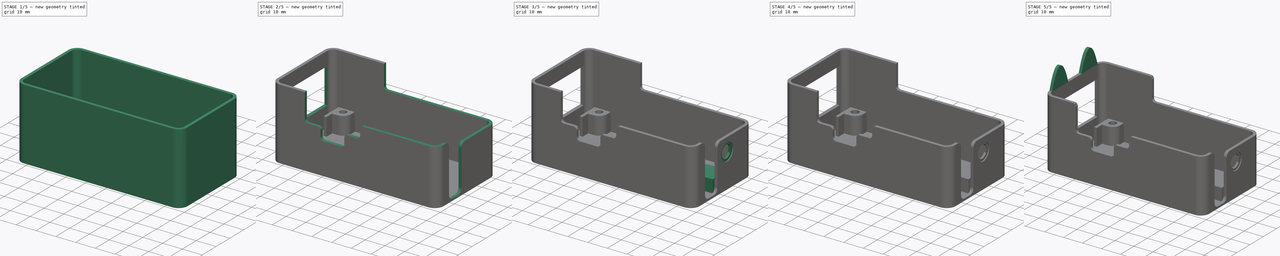
[diagram: build sequence overview — one tinted view per stage of 5, left to right]
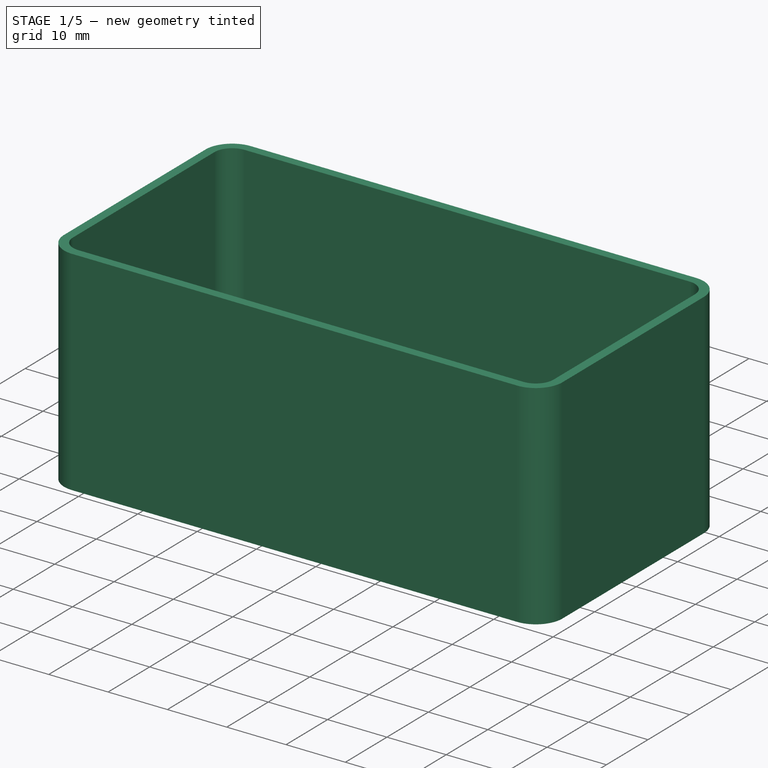
[diagram: stage 1 of 5 — iso view after this stage's code; geometry added in this stage tinted green]
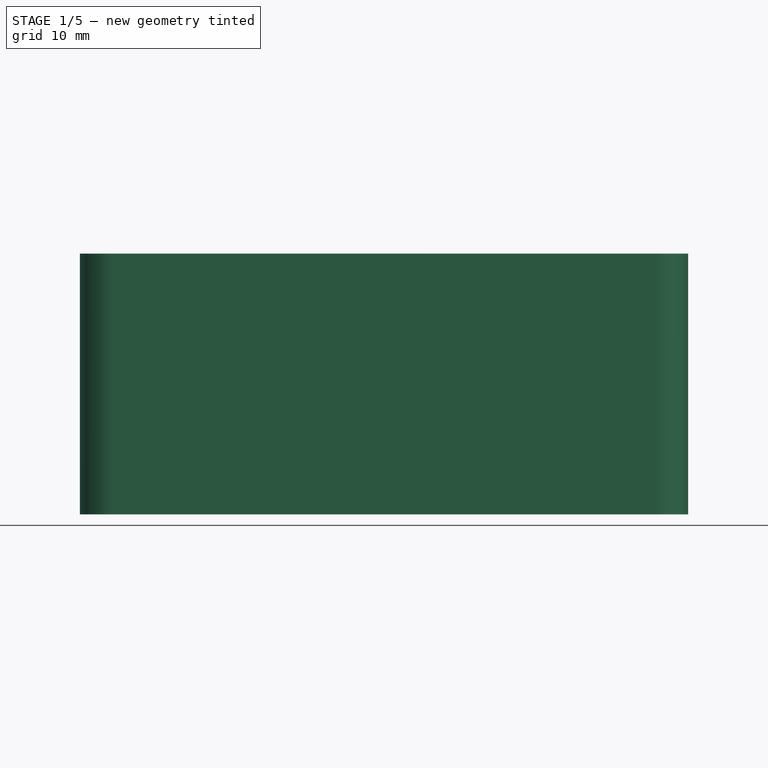
[diagram: stage 1 of 5 — front view after this stage's code; geometry added in this stage tinted green]
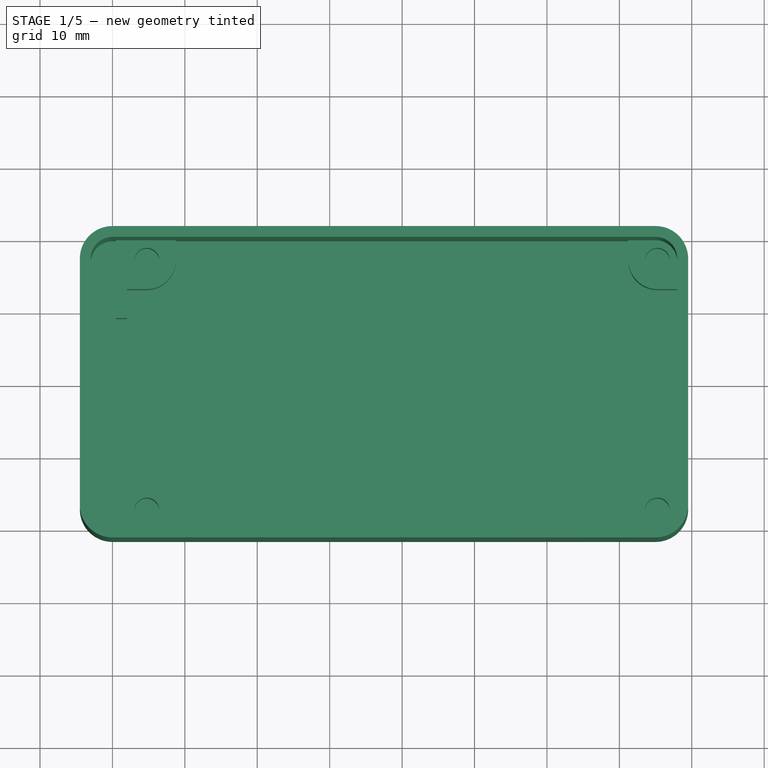
[diagram: stage 1 of 5 — top view after this stage's code; geometry added in this stage tinted green]
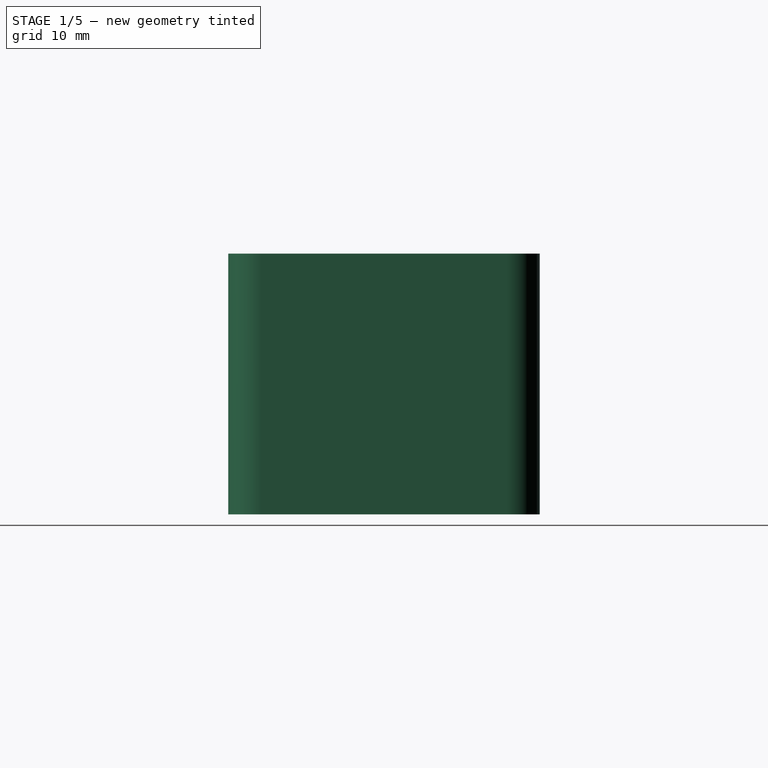
[diagram: stage 1 of 5 — right view after this stage's code; geometry added in this stage tinted green]
FCSTD DOCUMENT  (FreeCAD 0.20R29410 (Git))
Label: Long-Distance-V1
License: All rights reserved
LicenseURL: http://en.wikipedia.org/wiki/All_rights_reserved
objects: Sketcher::SketchObject×15, PartDesign::Pocket×11, PartDesign::Pad×4, PartDesign::LinearPattern×2, PartDesign::MultiTransform×1, PartDesign::Fillet×1, PartDesign::Body×1
note: 51 computed .brp shape members not serialized (recipe doc carries the construction recipe); baked Part::Feature solids carry a one-line shape summary decoded from their .brp

FEATURE [Sketcher::SketchObject] Sketch
  FullyConstrained = true
  MapMode = 5
  Support = -> [XY_Plane]
  sketch-geometry (20):
    g0: LineSegment StartX=-35 StartY=20 StartZ=0 EndX=35 EndY=20 EndZ=0
    g1: LineSegment StartX=38 StartY=17 StartZ=0 EndX=38 EndY=-17 EndZ=0
    g2: LineSegment StartX=35 StartY=-20 StartZ=0 EndX=-35 EndY=-20 EndZ=0
    g3: LineSegment StartX=-38 StartY=-17 StartZ=0 EndX=-38 EndY=17 EndZ=0
    g4: ArcOfCircle CenterX=-35 CenterY=17 CenterZ=0 NormalX=0 NormalY=0 NormalZ=1 AngleXU=0 Radius=3 StartAngle=1.5708 EndAngle=3.14159
    g5: ArcOfCircle CenterX=35 CenterY=17 CenterZ=0 NormalX=0 NormalY=0 NormalZ=1 AngleXU=0 Radius=3 StartAngle=3e-16 EndAngle=1.5708
    g6: ArcOfCircle CenterX=35 CenterY=-17 CenterZ=0 NormalX=0 NormalY=0 NormalZ=1 AngleXU=0 Radius=3 StartAngle=4.71239 EndAngle=6.28319
    g7: ArcOfCircle CenterX=-35 CenterY=-17 CenterZ=0 NormalX=0 NormalY=0 NormalZ=1 AngleXU=0 Radius=3 StartAngle=3.14159 EndAngle=4.71239
    g8: LineSegment StartX=-40 StartY=21.5 StartZ=0 EndX=35 EndY=21.5 EndZ=0
    g9: LineSegment StartX=39.5 StartY=17 StartZ=0 EndX=39.5 EndY=-17 EndZ=0
    g10: LineSegment StartX=35 StartY=-21.5 StartZ=0 EndX=-40 EndY=-21.5 EndZ=0
    g11: LineSegment StartX=-44.5 StartY=-17 StartZ=0 EndX=-44.5 EndY=17 EndZ=0
    g12: ArcOfCircle CenterX=-40 CenterY=17 CenterZ=0 NormalX=0 NormalY=0 NormalZ=1 AngleXU=0 Radius=4.5 StartAngle=1.5708 EndAngle=3.14159
    g13: GeomPoint X=-44.5 Y=21.5 Z=0
    g14: ArcOfCircle CenterX=-40 CenterY=-17 CenterZ=0 NormalX=0 NormalY=0 NormalZ=1 AngleXU=0 Radius=4.5 StartAngle=3.14159 EndAngle=4.71239
    g15: GeomPoint X=-44.5 Y=-21.5 Z=0
    g16: ArcOfCircle CenterX=35 CenterY=-17 CenterZ=0 NormalX=0 NormalY=0 NormalZ=1 AngleXU=0 Radius=4.5 StartAngle=4.71239 EndAngle=6.28319
    g17: GeomPoint X=39.5 Y=-21.5 Z=0
    g18: ArcOfCircle CenterX=35 CenterY=17 CenterZ=0 NormalX=0 NormalY=0 NormalZ=1 AngleXU=0 Radius=4.5 StartAngle=0 EndAngle=1.5708
    g19: GeomPoint X=39.5 Y=21.5 Z=0
  constraints (46):
    c: Horizontal(g0)
    c: Horizontal(g2)
    c: Vertical(g1)
    c: Vertical(g3)
    c: Tangent(g3,g4) = 1.5708
    c: Tangent(g0,g4) = 1.5708
    c: Tangent(g0,g5) = 1.5708
    c: Tangent(g1,g5) = 1.5708
    c: Tangent(g2,g6) = 1.5708
    c: Tangent(g1,g6) = 1.5708
    c: Tangent(g3,g7) = 1.5708
    c: Tangent(g2,g7) = 1.5708
    c: Equal(g7,g4)
    c: Equal(g4,g5)
    c: Equal(g5,g6)
    c: Radius(g5) = 3
    c: Symmetric(g4,g6,g-1)
    c: DistanceY(g2,g0) = 40
    c: DistanceX(g3,g1) = 76
    c: Horizontal(g8)
    c: Horizontal(g10)
    c: Vertical(g9)
    c: Vertical(g11)
    c: DistanceX(g1,g19) = 1.5
    c: DistanceY(g0,g19) = 1.5
    c: DistanceY(g17,g2) = 1.5
    c: DistanceX(g13,g3) = 6.5
    c: PointOnObject(g13,g11)
    c: PointOnObject(g13,g8)
    c: Tangent(g11,g12) = 1.5708
    c: Tangent(g8,g12) = 1.5708
    c: PointOnObject(g15,g11)
    c: PointOnObject(g15,g10)
    c: Tangent(g11,g14) = 1.5708
    c: Tangent(g10,g14) = 1.5708
    c: PointOnObject(g17,g10)
    c: PointOnObject(g17,g9)
    c: Tangent(g10,g16) = 1.5708
    c: Tangent(g9,g16) = 1.5708
    c: PointOnObject(g19,g8)
    c: Tangent(g8,g18) = 1.5708
    c: Tangent(g9,g18) = 1.5708
    c: Equal(g12,g18)
    c: Equal(g18,g14)
    c: Equal(g14,g16)
    c: Coincident(g16,g6)
FEATURE [PartDesign::Pad] Pad
  Direction = (0,0,1)
  Length = 36
  Length2 = 10
  Profile = -> Sketch
  ReferenceAxis = -> Sketch [N_Axis]
  Type = 0
FEATURE [Sketcher::SketchObject] Sketch001
  ExternalGeometry = -> [Pad]
  FullyConstrained = true
  MapMode = 5
  Placement = pos=(0,0,36) rot=(0,0,1;0rad)
  Support = -> [Pad]
  sketch-geometry (12):
    g0: LineSegment StartX=-40 StartY=20 StartZ=0 EndX=35 EndY=20 EndZ=0
    g1: LineSegment StartX=38 StartY=17 StartZ=0 EndX=38 EndY=-17 EndZ=0
    g2: LineSegment StartX=35 StartY=-20 StartZ=0 EndX=-40 EndY=-20 EndZ=0
    g3: LineSegment StartX=-43 StartY=-17 StartZ=0 EndX=-43 EndY=17 EndZ=0
    g4: ArcOfCircle CenterX=35 CenterY=17 CenterZ=0 NormalX=0 NormalY=0 NormalZ=1 AngleXU=0 Radius=3 StartAngle=0 EndAngle=1.5708
    g5: GeomPoint X=38 Y=20 Z=0
    g6: ArcOfCircle CenterX=35 CenterY=-17 CenterZ=0 NormalX=0 NormalY=0 NormalZ=1 AngleXU=0 Radius=3 StartAngle=4.71239 EndAngle=6.28319
    g7: GeomPoint X=38 Y=-20 Z=0
    g8: ArcOfCircle CenterX=-40 CenterY=-17 CenterZ=0 NormalX=0 NormalY=0 NormalZ=1 AngleXU=0 Radius=3 StartAngle=3.14159 EndAngle=4.71239
    g9: GeomPoint X=-43 Y=-20 Z=0
    g10: ArcOfCircle CenterX=-40 CenterY=17 CenterZ=0 NormalX=0 NormalY=0 NormalZ=1 AngleXU=0 Radius=3 StartAngle=1.5708 EndAngle=3.14159
    g11: GeomPoint X=-43 Y=20 Z=0
  constraints (26):
    c: Horizontal(g0)
    c: Horizontal(g2)
    c: Vertical(g1)
    c: Vertical(g3)
    c: PointOnObject(g5,g0)
    c: PointOnObject(g5,g1)
    c: Tangent(g0,g4) = 1.5708
    c: Tangent(g1,g4) = 1.5708
    c: PointOnObject(g7,g1)
    c: PointOnObject(g7,g2)
    c: Tangent(g1,g6) = 1.5708
    c: Tangent(g2,g6) = 1.5708
    c: PointOnObject(g9,g3)
    c: PointOnObject(g9,g2)
    c: Tangent(g3,g8) = 1.5708
    c: Tangent(g2,g8) = 1.5708
    c: PointOnObject(g11,g3)
    c: PointOnObject(g11,g0)
    c: Tangent(g3,g10) = 1.5708
    c: Tangent(g0,g10) = 1.5708
    c: Coincident(g10,g-3)
    c: Coincident(g6,g-4)
    c: Equal(g4,g6)
    c: Equal(g6,g8)
    c: Equal(g8,g10)
    c: DistanceY(g-4,g2) = 1.5
FEATURE [PartDesign::Pocket] Pocket
  BaseFeature = -> Pad
  Direction = (0,0,-1)
  Length = 35
  Length2 = 5
  Profile = -> Sketch001
  ReferenceAxis = -> Sketch001 [N_Axis]
  Type = 0
FEATURE [Sketcher::SketchObject] Sketch002
  ExternalGeometry = -> [Pocket]
  FullyConstrained = true
  MapMode = 5
  Placement = pos=(0,0,1) rot=(0,0,1;0rad)
  Support = -> [Pocket]
  sketch-geometry (30):
    g0: LineSegment StartX=-39.5 StartY=20 StartZ=0 EndX=-31.25 EndY=20 EndZ=0
    g1: LineSegment StartX=-31.25 StartY=20 StartZ=0 EndX=-31.25 EndY=17.25 EndZ=0
    g2: LineSegment StartX=-35.25 StartY=13.25 StartZ=0 EndX=-38 EndY=13.25 EndZ=0
    g3: LineSegment StartX=35.25 StartY=20 StartZ=0 EndX=31.25 EndY=20 EndZ=0
    g4: LineSegment StartX=31.25 StartY=20 StartZ=0 EndX=31.25 EndY=17.25 EndZ=0
    g5: LineSegment StartX=35.25 StartY=13.25 StartZ=0 EndX=38 EndY=13.25 EndZ=0
    g6: LineSegment StartX=38 StartY=13.25 StartZ=0 EndX=38 EndY=17.25 EndZ=0
    g7: LineSegment StartX=-38 StartY=-13.25 StartZ=0 EndX=-35.25 EndY=-13.25 EndZ=0
    g8: LineSegment StartX=-31.25 StartY=-17.25 StartZ=0 EndX=-31.25 EndY=-20 EndZ=0
    g9: LineSegment StartX=-31.25 StartY=-20 StartZ=0 EndX=-39.5 EndY=-20 EndZ=0
    g10: LineSegment StartX=35.25 StartY=-13.25 StartZ=0 EndX=38 EndY=-13.25 EndZ=0
    g11: LineSegment StartX=38 StartY=-13.25 StartZ=0 EndX=38 EndY=-17.25 EndZ=0
    g12: LineSegment StartX=35.25 StartY=-20 StartZ=0 EndX=31.25 EndY=-20 EndZ=0
    g13: LineSegment StartX=31.25 StartY=-20 StartZ=0 EndX=31.25 EndY=-17.25 EndZ=0
    g14: ArcOfCircle CenterX=-35.25 CenterY=17.25 CenterZ=0 NormalX=0 NormalY=0 NormalZ=1 AngleXU=0 Radius=4 StartAngle=4.71239 EndAngle=6.28319
    g15: ArcOfCircle CenterX=35.25 CenterY=17.25 CenterZ=0 NormalX=0 NormalY=0 NormalZ=1 AngleXU=0 Radius=2.75 StartAngle=-6.2e-15 EndAngle=1.5708
    g16: ArcOfCircle CenterX=35.25 CenterY=17.25 CenterZ=0 NormalX=0 NormalY=0 NormalZ=1 AngleXU=0 Radius=4 StartAngle=3.14159 EndAngle=4.71239
    g17: ArcOfCircle CenterX=-35.25 CenterY=-17.25 CenterZ=0 NormalX=0 NormalY=0 NormalZ=1 AngleXU=0 Radius=4 StartAngle=1e-16 EndAngle=1.5708
    g18: ArcOfCircle CenterX=35.25 CenterY=-17.25 CenterZ=0 NormalX=0 NormalY=0 NormalZ=1 AngleXU=0 Radius=4 StartAngle=1.5708 EndAngle=3.14159
    g19: ArcOfCircle CenterX=35.25 CenterY=-17.25 CenterZ=0 NormalX=0 NormalY=0 NormalZ=1 AngleXU=0 Radius=2.75 StartAngle=4.71239 EndAngle=6.28319
    g20: Circle CenterX=35.25 CenterY=17.25 CenterZ=0 NormalX=0 NormalY=0 NormalZ=1 AngleXU=0 Radius=1.7
    g21: Circle CenterX=-35.25 CenterY=17.25 CenterZ=0 NormalX=0 NormalY=0 NormalZ=1 AngleXU=0 Radius=1.7
    g22: Circle CenterX=-35.25 CenterY=-17.25 CenterZ=0 NormalX=0 NormalY=0 NormalZ=1 AngleXU=0 Radius=1.7
    g23: Circle CenterX=35.25 CenterY=-17.25 CenterZ=0 NormalX=0 NormalY=0 NormalZ=1 AngleXU=0 Radius=1.7
    g24: LineSegment StartX=-38 StartY=13.25 StartZ=0 EndX=-38 EndY=9.25 EndZ=0
    g25: LineSegment StartX=-38 StartY=9.25 StartZ=0 EndX=-39.5 EndY=9.25 EndZ=0
    g26: LineSegment StartX=-39.5 StartY=9.25 StartZ=0 EndX=-39.5 EndY=20 EndZ=0
    g27: LineSegment StartX=-38 StartY=-13.25 StartZ=0 EndX=-38 EndY=-9.25 EndZ=0
    g28: LineSegment StartX=-38 StartY=-9.25 StartZ=0 EndX=-39.5 EndY=-9.25 EndZ=0
    g29: LineSegment StartX=-39.5 StartY=-9.25 StartZ=0 EndX=-39.5 EndY=-20 EndZ=0
  constraints (75):
    c: Coincident(g0,g1)
    c: Horizontal(g0)
    c: Horizontal(g2)
    c: Vertical(g1)
    c: Coincident(g3,g4)
    c: Coincident(g5,g6)
    c: Horizontal(g3)
    c: Horizontal(g5)
    c: Vertical(g4)
    c: Vertical(g6)
    c: Coincident(g8,g9)
    c: Horizontal(g7)
    c: Horizontal(g9)
    c: Vertical(g8)
    c: Coincident(g10,g11)
    c: Coincident(g12,g13)
    c: Horizontal(g10)
    c: Horizontal(g12)
    c: Vertical(g11)
    c: Vertical(g13)
    c: Tangent(g2,g14) = 1.5708
    c: Tangent(g1,g14) = 1.5708
    c: Tangent(g3,g15) = -1.5708
    c: Tangent(g6,g15) = -1.5708
    c: Tangent(g4,g16) = -1.5708
    c: Tangent(g5,g16) = -1.5708
    c: Tangent(g7,g17) = 1.5708
    c: Tangent(g8,g17) = 1.5708
    c: Tangent(g13,g18) = 1.5708
    c: Tangent(g10,g18) = 1.5708
    c: Tangent(g12,g19) = 1.5708
    c: Tangent(g11,g19) = 1.5708
    c: Equal(g15,g19)
    c: Equal(g17,g18)
    c: Equal(g18,g16)
    c: Equal(g16,g14)
    c: Equal(g1,g4)
    c: Equal(g2,g5)
    c: Equal(g5,g10)
    c: Equal(g13,g8)
    c: Equal(g5,g4)
    c: Equal(g21,g20)
    c: Equal(g20,g23)
    c: Equal(g23,g22)
    c: Symmetric(g21,g23,g-1)
    c: Symmetric(g22,g20,g-1)
    c: DistanceX(g21,g20) = 70.5
    c: DistanceY(g22,g21) = 34.5
    c: Coincident(g18,g23)
    c: Radius(g18) = 4
    c: Symmetric(g22,g21,g-1)
    c: Coincident(g20,g15)
    c: Diameter(g22) = 3.4
    c: PointOnObject(g8,g-3)
    c: Coincident(g17,g22)
    c: Coincident(g2,g24)
    c: Vertical(g24)
    c: Coincident(g24,g25)
    c: Coincident(g25,g26)
    c: Coincident(g26,g0)
    c: Vertical(g26)
    c: Horizontal(g25)
    c: DistanceX(g-5,g25) = 3.5
    c: Coincident(g14,g21)
    c: Coincident(g7,g27)
    c: Coincident(g27,g28)
    c: Horizontal(g28)
    c: Coincident(g28,g29)
    c: Coincident(g29,g9)
    c: Vertical(g29)
    c: Equal(g25,g28)
    c: Vertical(g27)
    c: Symmetric(g24,g27,g-1)
    c: DistanceY(g27,g27) = 4
    c: Coincident(g18,g19)
FEATURE [PartDesign::Pad] Pad001
  BaseFeature = -> Pocket
  Direction = (0,0,1)
  Length = 9
  Length2 = 10
  Profile = -> Sketch002
  ReferenceAxis = -> Sketch002 [N_Axis]
  Type = 0
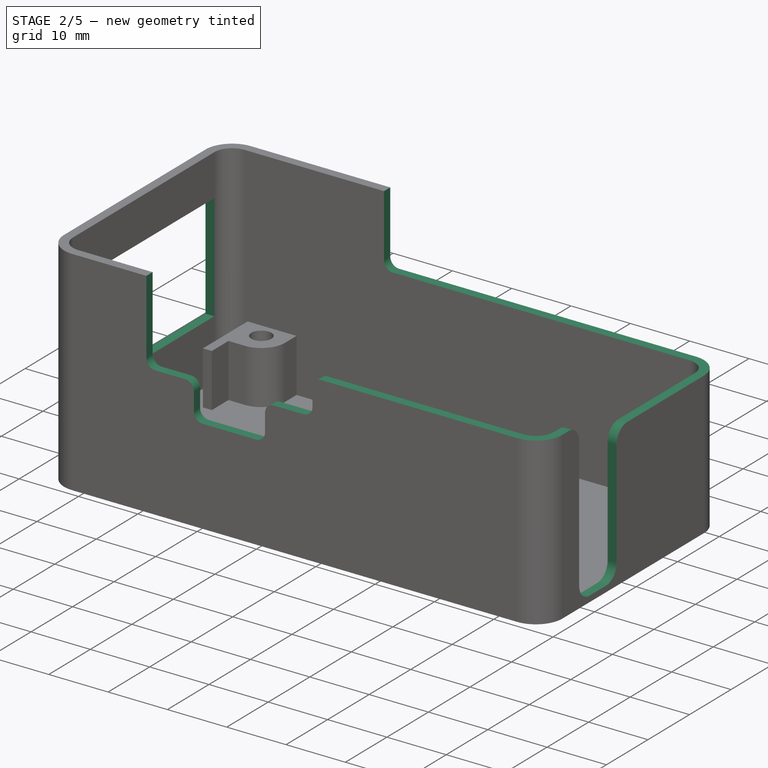
[diagram: stage 2 of 5 — iso view after this stage's code; geometry added in this stage tinted green]
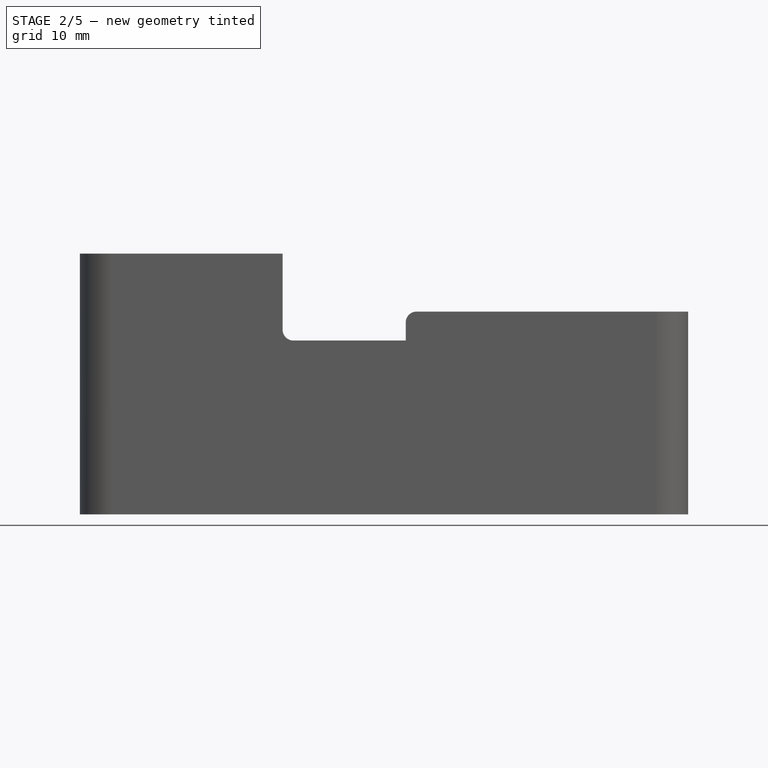
[diagram: stage 2 of 5 — front view after this stage's code; geometry added in this stage tinted green]
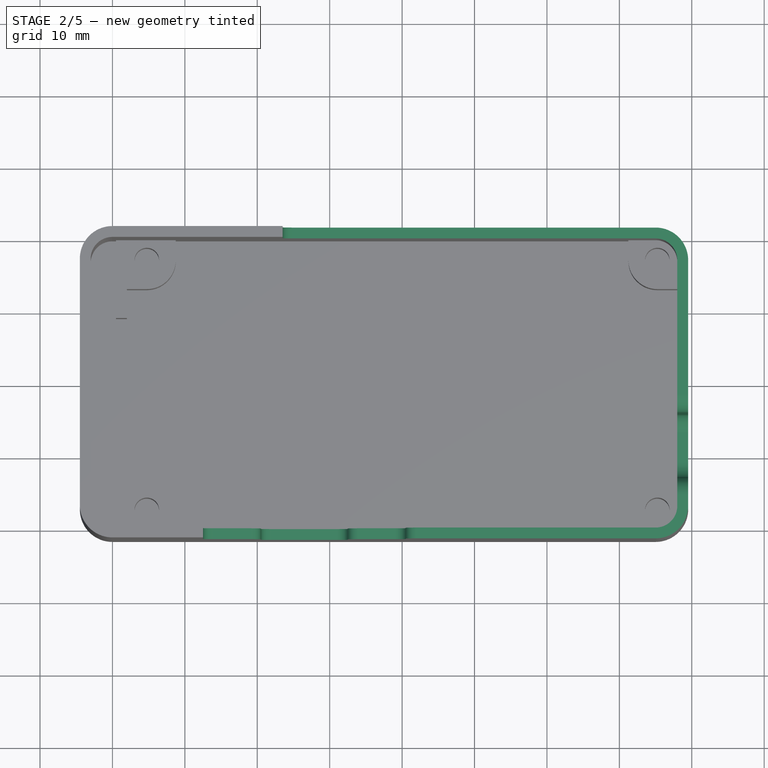
[diagram: stage 2 of 5 — top view after this stage's code; geometry added in this stage tinted green]
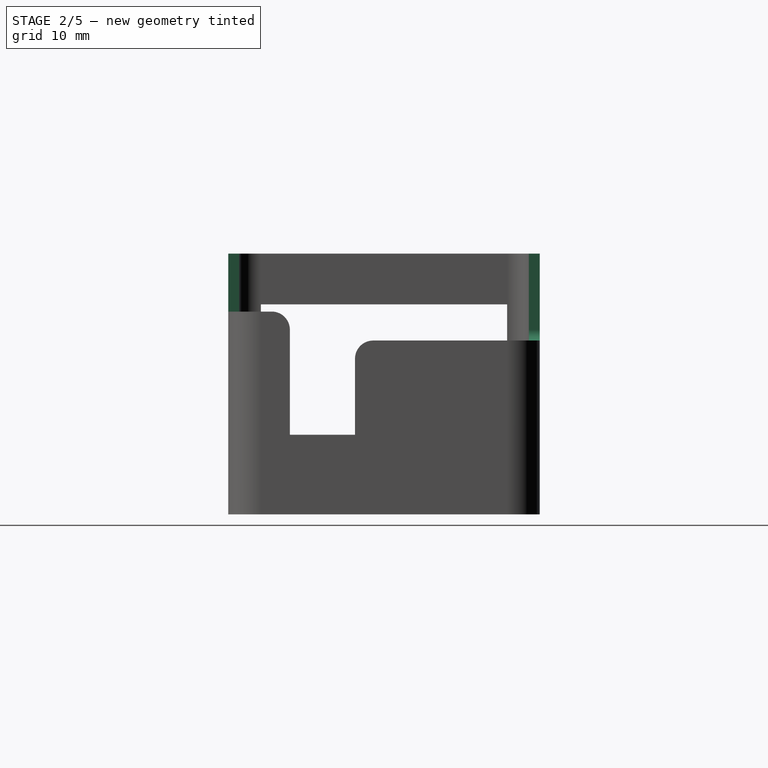
[diagram: stage 2 of 5 — right view after this stage's code; geometry added in this stage tinted green]
FEATURE [Sketcher::SketchObject] Sketch011
  FullyConstrained = false
  MapMode = 5
  Placement = pos=(-44.5,0,0) rot=(0.57735,-0.57735,-0.57735;2.0944rad)
  sketch-geometry (4):
    g0: LineSegment StartX=-17 StartY=29 StartZ=0 EndX=17 EndY=29 EndZ=0
    g1: LineSegment StartX=17 StartY=29 StartZ=0 EndX=17 EndY=11 EndZ=0
    g2: LineSegment StartX=17 StartY=11 StartZ=0 EndX=-17 EndY=11 EndZ=0
    g3: LineSegment StartX=-17 StartY=11 StartZ=0 EndX=-17 EndY=29 EndZ=0
  constraints (9):
    c: Coincident(g0,g1)
    c: Coincident(g2,g3)
    c: Coincident(g3,g0)
    c: Horizontal(g2)
    c: Vertical(g1)
    c: Vertical(g3)
    c: DistanceY(g1,g1) = 18
    c: Symmetric(g0,g0,g-2)
    c: Coincident(g1,g2)
FEATURE [Sketcher::SketchObject] Sketch013
  FullyConstrained = true
  MapMode = 5
  Placement = pos=(0,0,1) rot=(0,0,1;0rad)
  sketch-geometry (37):
    g0: LineSegment StartX=-28 StartY=-9 StartZ=0 EndX=-26.8397 EndY=-11.0096 EndZ=0
    g1: LineSegment StartX=-26.8397 StartY=-11.0096 StartZ=0 EndX=-24.5192 EndY=-11.0096 EndZ=0
    g2: LineSegment StartX=-24.5192 StartY=-11.0096 StartZ=0 EndX=-23.359 EndY=-9 EndZ=0
    g3: LineSegment StartX=-23.359 StartY=-9 StartZ=0 EndX=-24.5192 EndY=-6.99038 EndZ=0
    g4: LineSegment StartX=-24.5192 StartY=-6.99038 StartZ=0 EndX=-26.8397 EndY=-6.99038 EndZ=0
    g5: LineSegment StartX=-26.8397 StartY=-6.99038 StartZ=0 EndX=-28 EndY=-9 EndZ=0
    g6: Circle CenterX=-25.6795 CenterY=-9 CenterZ=0 NormalX=0 NormalY=0 NormalZ=1 AngleXU=0 Radius=2.32051
    g7: LineSegment StartX=-18.1795 StartY=-6.00962 StartZ=0 EndX=-19.3397 EndY=-4 EndZ=0
    g8: LineSegment StartX=-19.3397 StartY=-4 StartZ=0 EndX=-21.6603 EndY=-4 EndZ=0
    g9: LineSegment StartX=-21.6603 StartY=-4 StartZ=0 EndX=-22.8205 EndY=-6.00962 EndZ=0
    g10: LineSegment StartX=-22.8205 StartY=-6.00962 StartZ=0 EndX=-21.6603 EndY=-8.01924 EndZ=0
    g11: LineSegment StartX=-21.6603 StartY=-8.01924 StartZ=0 EndX=-19.3397 EndY=-8.01924 EndZ=0
    g12: LineSegment StartX=-19.3397 StartY=-8.01924 StartZ=0 EndX=-18.1795 EndY=-6.00962 EndZ=0
    g13: Circle CenterX=-20.5 CenterY=-6.00962 CenterZ=0 NormalX=0 NormalY=0 NormalZ=1 AngleXU=0 Radius=2.32051
    g14: LineSegment StartX=-16.4808 StartY=-6.99038 StartZ=0 EndX=-17.641 EndY=-9 EndZ=0
    g15: LineSegment StartX=-17.641 StartY=-9 StartZ=0 EndX=-16.4808 EndY=-11.0096 EndZ=0
    g16: LineSegment StartX=-16.4808 StartY=-11.0096 StartZ=0 EndX=-14.1603 EndY=-11.0096 EndZ=0
    g17: LineSegment StartX=-14.1603 StartY=-11.0096 StartZ=0 EndX=-13 EndY=-9 EndZ=0
    g18: LineSegment StartX=-13 StartY=-9 StartZ=0 EndX=-14.1603 EndY=-6.99038 EndZ=0
    g19: LineSegment StartX=-14.1603 StartY=-6.99038 StartZ=0 EndX=-16.4808 EndY=-6.99038 EndZ=0
    g20: Circle CenterX=-15.3205 CenterY=-9 CenterZ=0 NormalX=0 NormalY=0 NormalZ=1 AngleXU=0 Radius=2.32051
    g21: LineSegment StartX=-22.8205 StartY=-11.9904 StartZ=0 EndX=-21.6603 EndY=-14 EndZ=0
    g22: LineSegment StartX=-21.6603 StartY=-14 StartZ=0 EndX=-19.3397 EndY=-14 EndZ=0
    g23: LineSegment StartX=-19.3397 StartY=-14 StartZ=0 EndX=-18.1795 EndY=-11.9904 EndZ=0
    g24: LineSegment StartX=-18.1795 StartY=-11.9904 StartZ=0 EndX=-19.3397 EndY=-9.98076 EndZ=0
    g25: LineSegment StartX=-19.3397 StartY=-9.98076 StartZ=0 EndX=-21.6603 EndY=-9.98076 EndZ=0
    g26: LineSegment StartX=-21.6603 StartY=-9.98076 StartZ=0 EndX=-22.8205 EndY=-11.9904 EndZ=0
    g27: Circle CenterX=-20.5 CenterY=-11.9904 CenterZ=0 NormalX=0 NormalY=0 NormalZ=1 AngleXU=0 Radius=2.32051
    g28: LineSegment StartX=-25.6795 StartY=-9 StartZ=0 EndX=-20.5 EndY=-6.00962 EndZ=0
    g29: LineSegment StartX=-20.5 StartY=-6.00962 StartZ=0 EndX=-15.3205 EndY=-9 EndZ=0
    g30: LineSegment StartX=-15.3205 StartY=-9 StartZ=0 EndX=-20.5 EndY=-11.9904 EndZ=0
    g31: LineSegment StartX=-20.5 StartY=-11.9904 StartZ=0 EndX=-25.6795 EndY=-9 EndZ=0
    g32: GeomPoint X=-20.5 Y=-9 Z=0
    g33: LineSegment StartX=-28 StartY=-4 StartZ=0 EndX=-13 EndY=-4 EndZ=0
    g34: LineSegment StartX=-13 StartY=-4 StartZ=0 EndX=-13 EndY=-14 EndZ=0
    g35: LineSegment StartX=-13 StartY=-14 StartZ=0 EndX=-28 EndY=-14 EndZ=0
    g36: LineSegment StartX=-28 StartY=-14 StartZ=0 EndX=-28 EndY=-4 EndZ=0
  constraints (89):
    c: Coincident(g0,g1)
    c: Coincident(g1,g2)
    c: Coincident(g2,g3)
    c: Coincident(g3,g4)
    c: Coincident(g4,g5)
    c: Coincident(g5,g0)
    c: Equal(g0, g1-g5) x5
    c: PointOnObject(g0,g6)
    c: PointOnObject(g1,g6)
    c: PointOnObject(g2,g6)
    c: PointOnObject(g3,g6)
    c: PointOnObject(g4,g6)
    c: PointOnObject(g5,g6)
    c: Coincident(g7,g8)
    c: Coincident(g8,g9)
    c: Coincident(g9,g10)
    c: Coincident(g10,g11)
    c: Coincident(g11,g12)
    c: Coincident(g12,g7)
    c: Equal(g7, g8-g12) x5
    c: PointOnObject(g7,g13)
    c: PointOnObject(g8,g13)
    c: PointOnObject(g9,g13)
    c: PointOnObject(g10,g13)
    c: PointOnObject(g11,g13)
    c: PointOnObject(g12,g13)
    c: Coincident(g14,g15)
    c: Coincident(g15,g16)
    c: Coincident(g16,g17)
    c: Coincident(g17,g18)
    c: Coincident(g18,g19)
    c: Coincident(g19,g14)
    c: Equal(g14, g15-g19) x5
    c: PointOnObject(g14,g20)
    c: PointOnObject(g15,g20)
    c: PointOnObject(g16,g20)
    c: PointOnObject(g17,g20)
    c: PointOnObject(g18,g20)
    c: PointOnObject(g19,g20)
    c: Coincident(g21,g22)
    c: Coincident(g22,g23)
    c: Coincident(g23,g24)
    c: Coincident(g24,g25)
    c: Coincident(g25,g26)
    c: Coincident(g26,g21)
    c: Equal(g21, g22-g26) x5
    c: PointOnObject(g21,g27)
    c: PointOnObject(g22,g27)
    c: PointOnObject(g23,g27)
    c: PointOnObject(g24,g27)
    c: PointOnObject(g25,g27)
    c: PointOnObject(g26,g27)
    c: Equal(g27,g13)
    c: Equal(g13,g20)
    c: Equal(g20,g6)
    c: Horizontal(g8)
    c: Horizontal(g16)
    c: Horizontal(g1)
    c: Horizontal(g25)
    c: Vertical(g13,g27)
    c: Horizontal(g20,g6)
    c: Coincident(g28,g6)
    c: Coincident(g28,g13)
    c: Coincident(g28,g29)
    c: Coincident(g29,g20)
    c: Coincident(g29,g30)
    c: Coincident(g30,g27)
    c: Coincident(g30,g31)
    c: Coincident(g31,g28)
    c: Parallel(g30,g28)
    c: Parallel(g31,g29)
    c: Angle(g28,g29) = 2.0944
    c: Symmetric(g20,g6,g32)
    c: Coincident(g33,g34)
    c: Coincident(g34,g35)
    c: Coincident(g35,g36)
    c: Coincident(g36,g33)
    c: Horizontal(g33)
    c: Horizontal(g35)
    c: Vertical(g34)
    c: Vertical(g36)
    c: PointOnObject(g17,g34)
    c: PointOnObject(g0,g36)
    c: PointOnObject(g7,g33)
    c: PointOnObject(g22,g35)
    c: DistanceY(g34,g34) = 10
    c: DistanceX(g33,g33) = 15
    c: DistanceY(g35,g-1) = 14
    c: DistanceX(g35,g-1) = 28
FEATURE [PartDesign::Pocket] Pocket002
  BaseFeature = -> Pad001
  Direction = (1,0,0)
  Length = 5
  Length2 = 5
  Profile = -> Sketch011
  ReferenceAxis = -> Sketch011 [N_Axis]
  Type = 0
FEATURE [Sketcher::SketchObject] Sketch010
  ExternalGeometry = -> [Pocket002]
  FullyConstrained = true
  MapMode = 5
  Placement = pos=(0,-21.5,0) rot=(1,0,0;1.5708rad)
  Support = -> [Pocket002]
  sketch-geometry (25):
    g0: LineSegment StartX=0.5 StartY=26.5 StartZ=0 EndX=0.5 EndY=23.5 EndZ=0
    g1: LineSegment StartX=-1 StartY=22 StartZ=0 EndX=-6 EndY=22 EndZ=0
    g2: LineSegment StartX=-27.5 StartY=23.5 StartZ=0 EndX=-27.5 EndY=36 EndZ=0
    g3: ArcOfCircle CenterX=-1 CenterY=23.5 CenterZ=0 NormalX=0 NormalY=0 NormalZ=1 AngleXU=0 Radius=1.5 StartAngle=4.71239 EndAngle=6.28319
    g4: GeomPoint X=0.5 Y=22 Z=0
    g5: LineSegment StartX=-7.5 StartY=20.5 StartZ=0 EndX=-7.5 EndY=17.5 EndZ=0
    g6: LineSegment StartX=-9 StartY=16 StartZ=0 EndX=-18 EndY=16 EndZ=0
    g7: LineSegment StartX=-19.5 StartY=17.5 StartZ=0 EndX=-19.5 EndY=20.5 EndZ=0
    g8: LineSegment StartX=-21 StartY=22 StartZ=0 EndX=-26 EndY=22 EndZ=0
    g9: ArcOfCircle CenterX=-21 CenterY=20.5 CenterZ=0 NormalX=0 NormalY=0 NormalZ=1 AngleXU=0 Radius=1.5 StartAngle=5e-16 EndAngle=1.5708
    g10: ArcOfCircle CenterX=-6 CenterY=20.5 CenterZ=0 NormalX=0 NormalY=0 NormalZ=1 AngleXU=0 Radius=1.5 StartAngle=1.5708 EndAngle=3.14159
    g11: ArcOfCircle CenterX=-18 CenterY=17.5 CenterZ=0 NormalX=0 NormalY=0 NormalZ=1 AngleXU=0 Radius=1.5 StartAngle=3.14159 EndAngle=4.71239
    g12: GeomPoint X=-19.5 Y=16 Z=0
    g13: ArcOfCircle CenterX=-9 CenterY=17.5 CenterZ=0 NormalX=0 NormalY=0 NormalZ=1 AngleXU=0 Radius=1.5 StartAngle=4.71239 EndAngle=6.28319
    g14: GeomPoint X=-7.5 Y=16 Z=0
    g15: LineSegment StartX=-13.5 StartY=36 StartZ=0 EndX=-13.5 EndY=16 EndZ=0
    g16: ArcOfCircle CenterX=-26 CenterY=23.5 CenterZ=0 NormalX=0 NormalY=0 NormalZ=1 AngleXU=0 Radius=1.5 StartAngle=3.14159 EndAngle=4.71239
    g17: GeomPoint X=-27.5 Y=22 Z=0
    g18: LineSegment StartX=2 StartY=28 StartZ=0 EndX=33.5 EndY=28 EndZ=0
    g19: LineSegment StartX=35 StartY=29.5 StartZ=0 EndX=35 EndY=36 EndZ=0
    g20: LineSegment StartX=35 StartY=36 StartZ=0 EndX=-27.5 EndY=36 EndZ=0
    g21: ArcOfCircle CenterX=33.5 CenterY=29.5 CenterZ=0 NormalX=0 NormalY=0 NormalZ=1 AngleXU=0 Radius=1.5 StartAngle=4.71239 EndAngle=6.28319
    g22: GeomPoint X=35 Y=28 Z=0
    g23: ArcOfCircle CenterX=2 CenterY=26.5 CenterZ=0 NormalX=0 NormalY=0 NormalZ=1 AngleXU=0 Radius=1.5 StartAngle=1.5708 EndAngle=3.14159
    g24: LineSegment StartX=-38 StartY=36 StartZ=0 EndX=38 EndY=36 EndZ=0
  constraints (60):
    c: Horizontal(g1)
    c: Vertical(g0)
    c: PointOnObject(g4,g0)
    c: PointOnObject(g4,g1)
    c: Tangent(g0,g3) = 1.5708
    c: Tangent(g1,g3) = 1.5708
    c: Vertical(g2)
    c: Horizontal(g6)
    c: Vertical(g5)
    c: Vertical(g7)
    c: Tangent(g8,g9) = -1.5708
    c: Tangent(g7,g9) = -1.5708
    c: Tangent(g5,g10) = -1.5708
    c: Tangent(g1,g10) = -1.5708
    c: PointOnObject(g12,g7)
    c: PointOnObject(g12,g6)
    c: Tangent(g7,g11) = 1.5708
    c: Tangent(g6,g11) = 1.5708
    c: PointOnObject(g14,g6)
    c: PointOnObject(g14,g5)
    c: Tangent(g6,g13) = 1.5708
    c: Tangent(g5,g13) = 1.5708
    c: Equal(g10,g13)
    c: Equal(g13,g11)
    c: Equal(g11,g9)
    c: Vertical(g15)
    c: Symmetric(g6,g6,g15)
    c: Horizontal(g8)
    c: Horizontal(g10,g9)
    c: DistanceY(g14,g1) = 6
    c: PointOnObject(g17,g2)
    c: PointOnObject(g17,g8)
    c: Tangent(g2,g16) = 1.5708
    c: Tangent(g8,g16) = 1.5708
    c: Coincident(g19,g20)
    c: Horizontal(g18)
    c: Horizontal(g20)
    c: Vertical(g19)
    c: Coincident(g19,g-3)
    c: PointOnObject(g22,g18)
    c: PointOnObject(g22,g19)
    c: Tangent(g18,g21) = -1.5708
    c: Tangent(g19,g21) = -1.5708
    c: Tangent(g0,g23) = -1.5708
    c: Tangent(g18,g23) = 1.5708
    c: Equal(g23,g21)
    c: Equal(g23,g16)
    c: DistanceY(g22,g19) = 8
    c: Coincident(g20,g2)
    c: Symmetric(g0,g2,g15)
    c: DistanceX(g2,g0) = 28
    c: Equal(g10,g3)
    c: Radius(g16) = 1.5
    c: DistanceX(g7,g5) = 12
    c: PointOnObject(g15,g20)
    c: Symmetric(g24,g24,g-2)
    c: DistanceX(g24,g24) = 76
    c: DistanceX(g24,g15) = 24.5
    c: PointOnObject(g24,g-3)
    c: DistanceY(g-5,g6) = 6
FEATURE [PartDesign::Pocket] Pocket003
  BaseFeature = -> Pocket002
  Direction = (0,1,-2e-16)
  Length = 5
  Length2 = 5
  Profile = -> Sketch010
  ReferenceAxis = -> Sketch010 [N_Axis]
  Type = 0
FEATURE [Sketcher::SketchObject] Sketch007
  ExternalGeometry = -> [Pocket003]
  FullyConstrained = true
  MapMode = 5
  Placement = pos=(39.5,0,0) rot=(0.57735,0.57735,0.57735;2.0944rad)
  sketch-geometry (13):
    g0: LineSegment StartX=-21.5 StartY=36 StartZ=0 EndX=21.5 EndY=36 EndZ=0
    g1: LineSegment StartX=21.5 StartY=36 StartZ=0 EndX=21.5 EndY=24 EndZ=0
    g2: LineSegment StartX=-21.5 StartY=28 StartZ=0 EndX=-21.5 EndY=36 EndZ=0
    g3: LineSegment StartX=-15.5 StartY=28 StartZ=0 EndX=-21.5 EndY=28 EndZ=0
    g4: ArcOfCircle CenterX=-15.5 CenterY=25.5 CenterZ=0 NormalX=0 NormalY=0 NormalZ=1 AngleXU=0 Radius=2.5 StartAngle=3e-16 EndAngle=1.5708
    g5: LineSegment StartX=-4 StartY=21.5 StartZ=0 EndX=-4 EndY=3.5 EndZ=0
    g6: LineSegment StartX=-6.5 StartY=1 StartZ=0 EndX=-10.5 EndY=1 EndZ=0
    g7: ArcOfCircle CenterX=-10.5 CenterY=3.5 CenterZ=0 NormalX=0 NormalY=0 NormalZ=1 AngleXU=0 Radius=2.5 StartAngle=3.14159 EndAngle=4.71239
    g8: ArcOfCircle CenterX=-6.5 CenterY=3.5 CenterZ=0 NormalX=0 NormalY=0 NormalZ=1 AngleXU=0 Radius=2.5 StartAngle=4.71239 EndAngle=6.28319
    g9: LineSegment StartX=-13 StartY=25.5 StartZ=0 EndX=-13 EndY=3.5 EndZ=0
    g10: ArcOfCircle CenterX=-1.5 CenterY=21.5 CenterZ=0 NormalX=0 NormalY=0 NormalZ=1 AngleXU=0 Radius=2.5 StartAngle=1.5708 EndAngle=3.14159
    g11: LineSegment StartX=-1.5 StartY=24 StartZ=0 EndX=21.5 EndY=24 EndZ=0
    g12: GeomPoint X=21.5 Y=24 Z=0
  constraints (35):
    c: Coincident(g0,g1)
    c: Coincident(g3,g2)
    c: Coincident(g2,g0)
    c: Vertical(g1)
    c: Vertical(g2)
    c: Symmetric(g0,g0,g-2)
    c: Horizontal(g0,g-3)
    c: Coincident(g2,g-6)
    c: Horizontal(g3)
    c: Tangent(g3,g4) = -1.5708
    c: DistanceX(g-3,g3) = 1.5
    c: Horizontal(g6)
    c: Vertical(g5)
    c: Tangent(g6,g7) = 1.5708
    c: Tangent(g6,g8) = 1.5708
    c: Tangent(g5,g8) = 1.5708
    c: Equal(g8,g7)
    c: DistanceY(g-1,g6) = 1
    c: Horizontal(g7,g7)
    c: Coincident(g9,g4)
    c: Coincident(g9,g7)
    c: Vertical(g9)
    c: Horizontal(g4,g4)
    c: DistanceX(g2,g4) = 8.5
    c: Tangent(g5,g10) = -1.5708
    c: Equal(g10,g8)
    c: Equal(g4,g10)
    c: Coincident(g11,g10)
    c: Horizontal(g11)
    c: Vertical(g10,g10)
    c: PointOnObject(g12,g11)
    c: PointOnObject(g12,g1)
    c: DistanceY(g12,g0) = 12
    c: DistanceX(g4,g5) = 9
    c: Coincident(g11,g1)
FEATURE [PartDesign::Pocket] Pocket004
  BaseFeature = -> Pocket003
  Direction = (-1,0,0)
  Length = 6
  Length2 = 5
  Profile = -> Sketch007
  ReferenceAxis = -> Sketch007 [N_Axis]
  Type = 0
FEATURE [Sketcher::SketchObject] Sketch009
  ExternalGeometry = -> [Pocket004]
  FullyConstrained = true
  MapMode = 5
  Placement = pos=(0,21.5,0) rot=(0,0.707107,0.707107;3.14159rad)
  sketch-geometry (6):
    g0: LineSegment StartX=-33.5 StartY=36 StartZ=0 EndX=16.5 EndY=36 EndZ=0
    g1: LineSegment StartX=16.5 StartY=36 StartZ=0 EndX=16.5 EndY=25.5 EndZ=0
    g2: LineSegment StartX=15 StartY=24 StartZ=0 EndX=-33.5 EndY=24 EndZ=0
    g3: LineSegment StartX=-33.5 StartY=24 StartZ=0 EndX=-33.5 EndY=36 EndZ=0
    g4: ArcOfCircle CenterX=15 CenterY=25.5 CenterZ=0 NormalX=0 NormalY=0 NormalZ=1 AngleXU=0 Radius=1.5 StartAngle=4.71239 EndAngle=6.28319
    g5: GeomPoint X=16.5 Y=24 Z=0
  constraints (14):
    c: Coincident(g0,g1)
    c: Coincident(g2,g3)
    c: Coincident(g3,g0)
    c: Horizontal(g0)
    c: Horizontal(g2)
    c: Vertical(g1)
    c: Coincident(g0,g-3)
    c: Coincident(g2,g-3)
    c: DistanceX(g0,g0) = 50
    c: PointOnObject(g5,g2)
    c: PointOnObject(g5,g1)
    c: Tangent(g2,g4) = 1.5708
    c: Tangent(g1,g4) = 1.5708
    c: Radius(g4) = 1.5
FEATURE [PartDesign::Pocket] Pocket005
  BaseFeature = -> Pocket004
  Direction = (0,-1,2e-16)
  Length = 5
  Length2 = 5
  Profile = -> Sketch009
  ReferenceAxis = -> Sketch009 [N_Axis]
  Type = 0
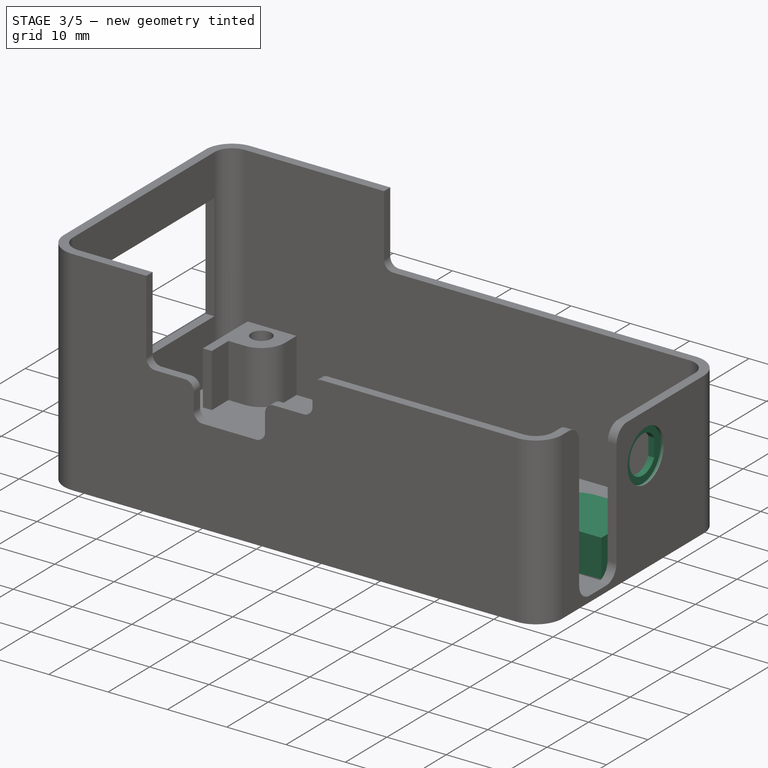
[diagram: stage 3 of 5 — iso view after this stage's code; geometry added in this stage tinted green]
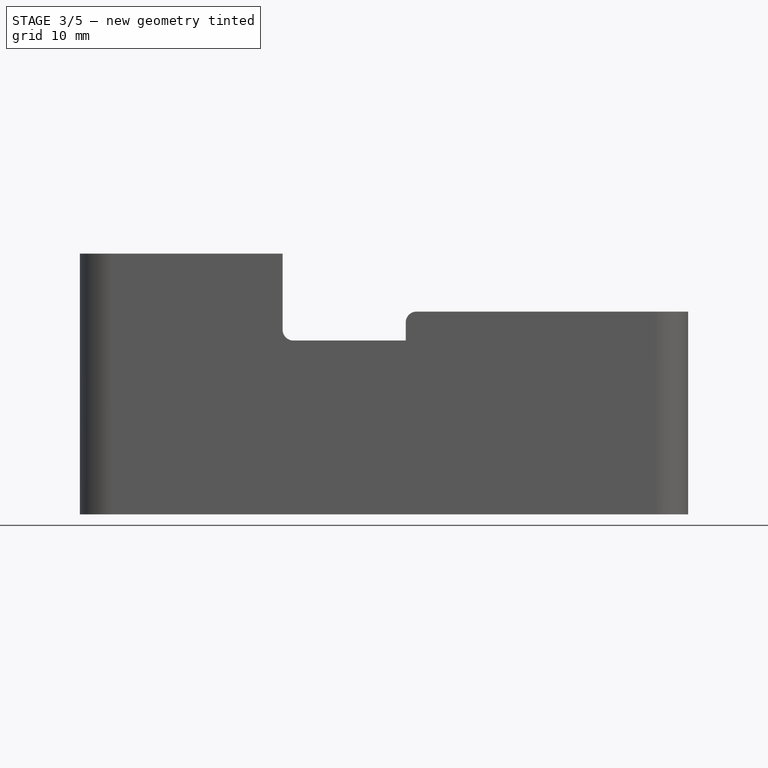
[diagram: stage 3 of 5 — front view after this stage's code; geometry added in this stage tinted green]
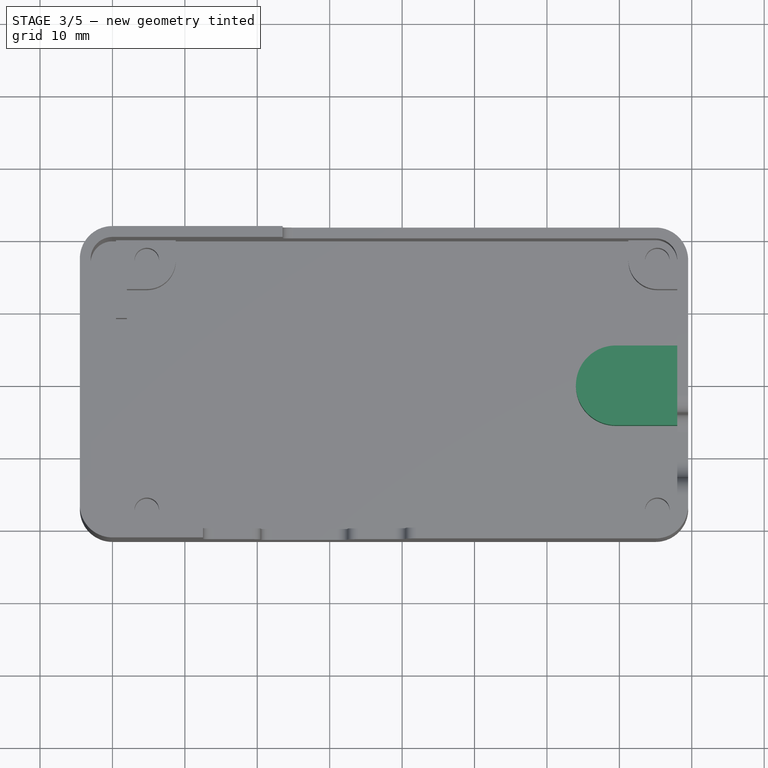
[diagram: stage 3 of 5 — top view after this stage's code; geometry added in this stage tinted green]
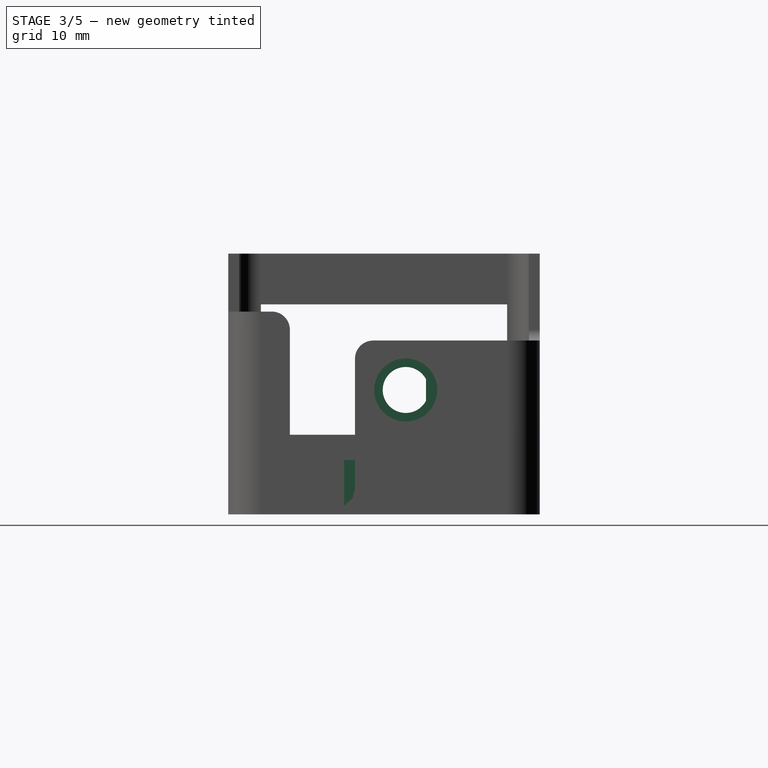
[diagram: stage 3 of 5 — right view after this stage's code; geometry added in this stage tinted green]
FEATURE [Sketcher::SketchObject] Sketch016
  ExternalGeometry = -> [Pocket005]
  FullyConstrained = true
  MapMode = 5
  Placement = pos=(39.5,0,0) rot=(0.57735,0.57735,0.57735;2.0944rad)
  Support = -> [Pocket005]
  sketch-geometry (4):
    g0: ArcOfCircle CenterX=3 CenterY=17.175 CenterZ=0 NormalX=0 NormalY=0 NormalZ=1 AngleXU=0 Radius=3.175 StartAngle=0.494934 EndAngle=5.78825
    g1: LineSegment StartX=5.794 StartY=18.683 StartZ=0 EndX=5.794 EndY=15.667 EndZ=0
    g2: GeomPoint X=-0.175 Y=17.175 Z=0
    g3: GeomPoint X=3 Y=14 Z=0
  constraints (11):
    c: Vertical(g1)
    c: Coincident(g0,g1)
    c: Coincident(g0,g1)
    c: PointOnObject(g2,g0)
    c: Horizontal(g0,g2)
    c: DistanceX(g2,g0) = 5.969
    c: Diameter(g0) = 6.35
    c: DistanceX(g-3,g0) = 7
    c: PointOnObject(g3,g0)
    c: Vertical(g3,g0)
    c: DistanceY(g-4,g3) = 4
FEATURE [PartDesign::Pocket] Pocket006
  BaseFeature = -> Pocket005
  Direction = (-1,0,0)
  Length = 5
  Length2 = 5
  Profile = -> Sketch016
  ReferenceAxis = -> Sketch016 [N_Axis]
  Type = 0
FEATURE [Sketcher::SketchObject] Sketch017
  ExternalGeometry = -> [Pocket006]
  FullyConstrained = true
  MapMode = 5
  Placement = pos=(39.5,0,0) rot=(0.57735,0.57735,0.57735;2.0944rad)
  Support = -> [Pocket006]
  sketch-geometry (1):
    g0: Circle CenterX=3 CenterY=17.175 CenterZ=0 NormalX=0 NormalY=0 NormalZ=1 AngleXU=0 Radius=4.35
  constraints (2):
    c: Diameter(g0) = 8.7
    c: Coincident(g0,g-3)
FEATURE [PartDesign::Pocket] Pocket007
  BaseFeature = -> Pocket006
  Direction = (-1,0,0)
  Length = 0.5
  Length2 = 5
  Profile = -> Sketch017
  ReferenceAxis = -> Sketch017 [N_Axis]
  Type = 0
FEATURE [Sketcher::SketchObject] Sketch018
  FullyConstrained = false
  MapMode = 5
  Placement = pos=(0,0,1) rot=(0,0,1;0rad)
  sketch-geometry (5):
    g0: ArcOfCircle CenterX=29.5 CenterY=0 CenterZ=0 NormalX=0 NormalY=0 NormalZ=1 AngleXU=0 Radius=5.5 StartAngle=1.5708 EndAngle=4.71239
    g1: LineSegment StartX=38 StartY=5.5 StartZ=0 EndX=29.5 EndY=5.5 EndZ=0
    g2: LineSegment StartX=29.5 StartY=-5.5 StartZ=0 EndX=38 EndY=-5.5 EndZ=0
    g3: LineSegment StartX=38 StartY=5.5 StartZ=0 EndX=38 EndY=-5.5 EndZ=0
    g4: GeomPoint X=24 Y=0 Z=0
  constraints (12):
    c: Coincident(g3,g1) = -1.5708
    c: Tangent(g1,g0) = -1.5708
    c: Tangent(g0,g2) = -1.5708
    c: Coincident(g2,g3) = -1.5708
    c: PointOnObject(g0,g-1)
    c: Vertical(g3)
    c: Horizontal(g2)
    c: Horizontal(g1)
    c: Diameter(g0) = 11
    c: PointOnObject(g4,g0)
    c: PointOnObject(g4,g-1)
    c: DistanceX(g4,g1) = 14
FEATURE [PartDesign::Pad] Pad002
  BaseFeature = -> Pocket007
  Direction = (0,0,1)
  Length = 6.5
  Length2 = 10
  Profile = -> Sketch018
  ReferenceAxis = -> Sketch018 [N_Axis]
  Type = 0
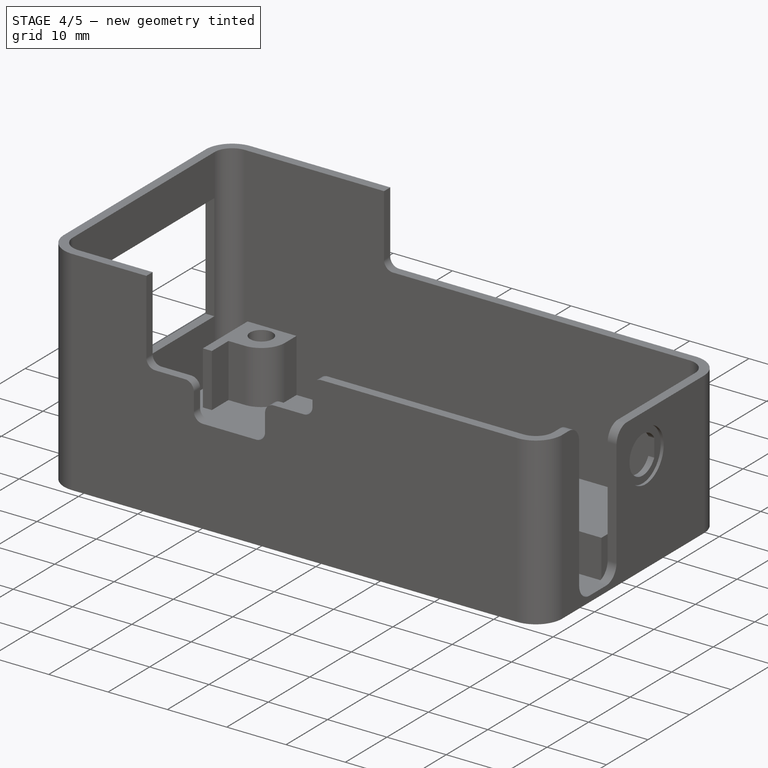
[diagram: stage 4 of 5 — iso view after this stage's code; geometry added in this stage tinted green]
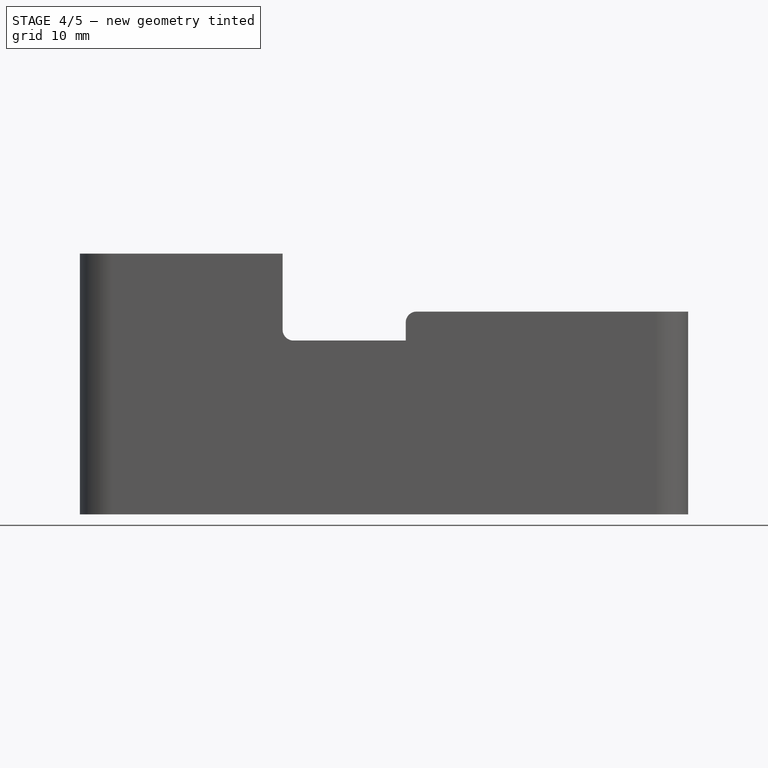
[diagram: stage 4 of 5 — front view after this stage's code; geometry added in this stage tinted green]
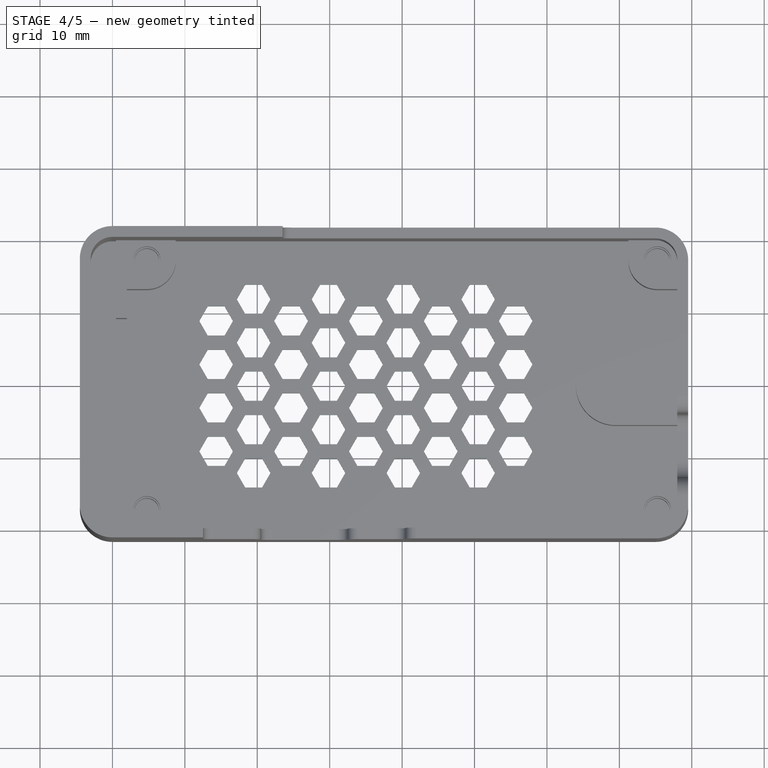
[diagram: stage 4 of 5 — top view after this stage's code; geometry added in this stage tinted green]
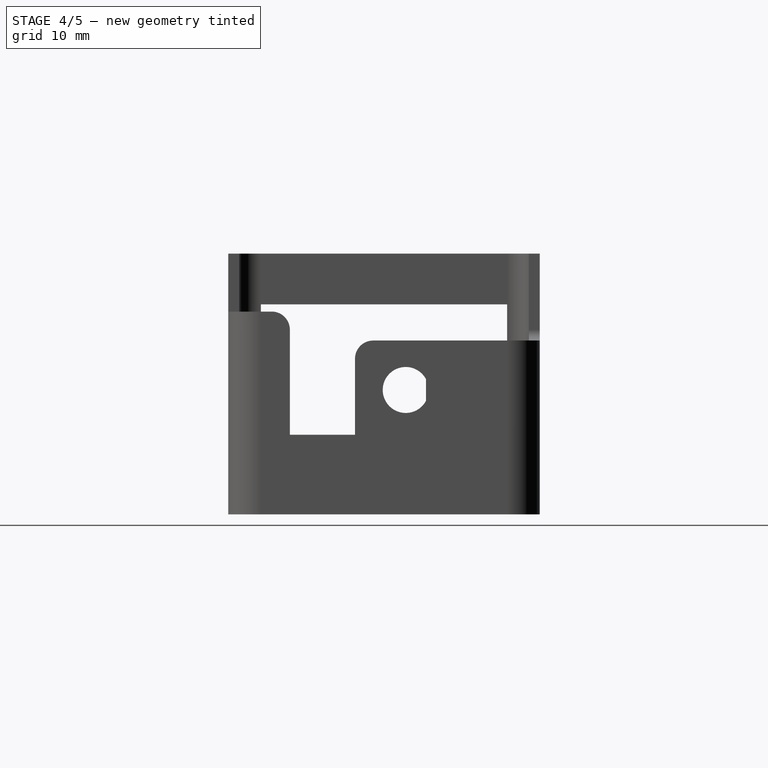
[diagram: stage 4 of 5 — right view after this stage's code; geometry added in this stage tinted green]
FEATURE [Sketcher::SketchObject] Sketch015
  ExternalGeometry = -> [Pad001]
  FullyConstrained = true
  MapMode = 5
  Placement = pos=(0,0,10) rot=(0,0,1;0rad)
  Support = -> [Pad002]
  sketch-geometry (4):
    g0: Circle CenterX=-35.25 CenterY=17.25 CenterZ=0 NormalX=0 NormalY=0 NormalZ=1 AngleXU=0 Radius=1.9
    g1: Circle CenterX=-35.25 CenterY=-17.25 CenterZ=0 NormalX=0 NormalY=0 NormalZ=1 AngleXU=0 Radius=1.9
    g2: Circle CenterX=35.25 CenterY=-17.25 CenterZ=0 NormalX=0 NormalY=0 NormalZ=1 AngleXU=0 Radius=1.9
    g3: Circle CenterX=35.25 CenterY=17.25 CenterZ=0 NormalX=0 NormalY=0 NormalZ=1 AngleXU=0 Radius=1.9
  constraints (8):
    c: Coincident(g0,g-3)
    c: Coincident(g1,g-4)
    c: Coincident(g2,g-5)
    c: Coincident(g3,g-6)
    c: Equal(g1,g0)
    c: Equal(g0,g3)
    c: Equal(g3,g2)
    c: Diameter(g3) = 3.8
FEATURE [PartDesign::Pocket] Pocket008
  BaseFeature = -> Pad002
  Direction = (0,0,-1)
  Length = 4
  Length2 = 5
  Profile = -> Sketch015
  ReferenceAxis = -> Sketch015 [N_Axis]
  Type = 0
FEATURE [Sketcher::SketchObject] Sketch019
  ExternalGeometry = -> [Pocket008]
  FullyConstrained = true
  MapMode = 5
  Placement = pos=(0,0,0) rot=(1,0,0;3.14159rad)
  Support = -> [Pocket008]
  sketch-geometry (1):
    g0: Circle CenterX=29.5 CenterY=0 CenterZ=0 NormalX=0 NormalY=0 NormalZ=1 AngleXU=0 Radius=4
  constraints (2):
    c: Diameter(g0) = 8
    c: Coincident(g0,g-3)
FEATURE [PartDesign::Pocket] Pocket009
  BaseFeature = -> Pocket008
  Direction = (0,0,1)
  Length = 6
  Length2 = 5
  Profile = -> Sketch019
  ReferenceAxis = -> Sketch019 [N_Axis]
  Type = 0
FEATURE [PartDesign::Pocket] Pocket010
  BaseFeature = -> Pocket009
  Direction = (0,0,-1)
  Length = 5
  Length2 = 5
  Profile = -> Sketch013
  ReferenceAxis = -> Sketch013 [N_Axis]
  Type = 0
FEATURE [PartDesign::LinearPattern] LinearPattern
  Direction = -> Sketch013 [V_Axis]
  Length = 18
  Occurrences = 4
FEATURE [PartDesign::LinearPattern] LinearPattern001
  Direction = -> Sketch013 [H_Axis]
  Length = 31
  Occurrences = 4
FEATURE [PartDesign::MultiTransform] MultiTransform
  BaseFeature = -> Pocket010
  Originals = -> [Pocket010]
  Transformations = -> [LinearPattern,LinearPattern001]
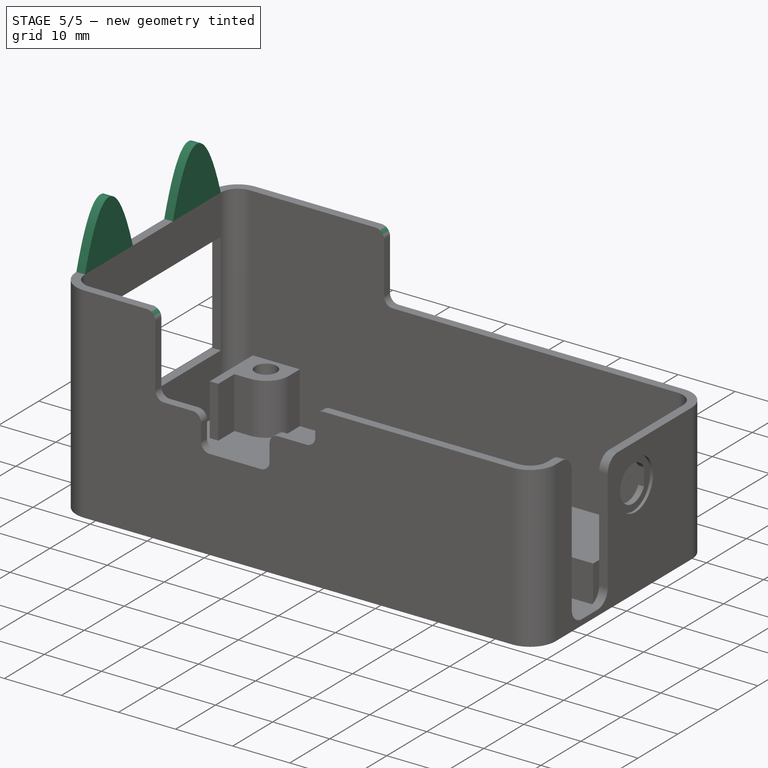
[diagram: stage 5 of 5 — iso view after this stage's code; geometry added in this stage tinted green]
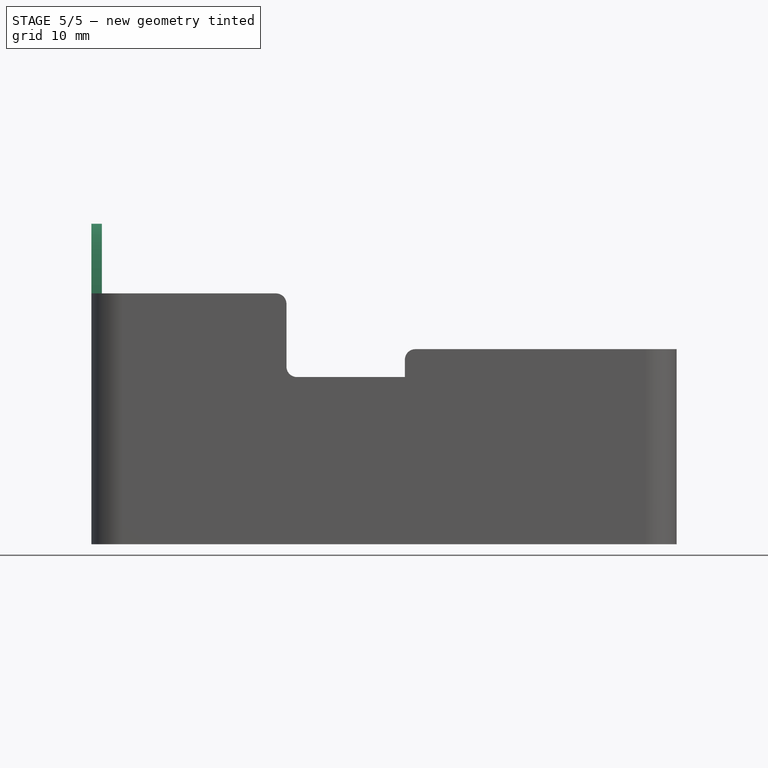
[diagram: stage 5 of 5 — front view after this stage's code; geometry added in this stage tinted green]
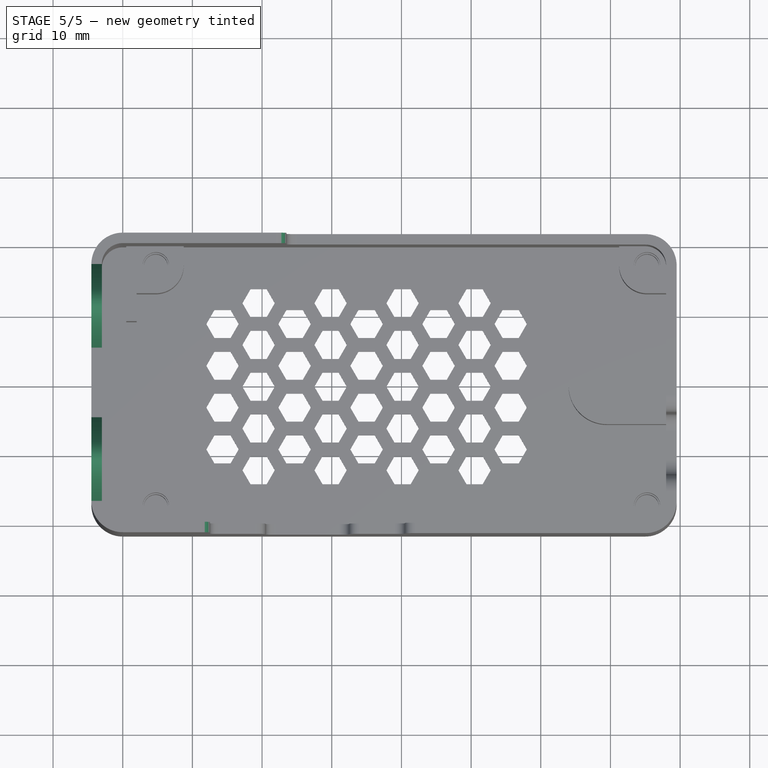
[diagram: stage 5 of 5 — top view after this stage's code; geometry added in this stage tinted green]
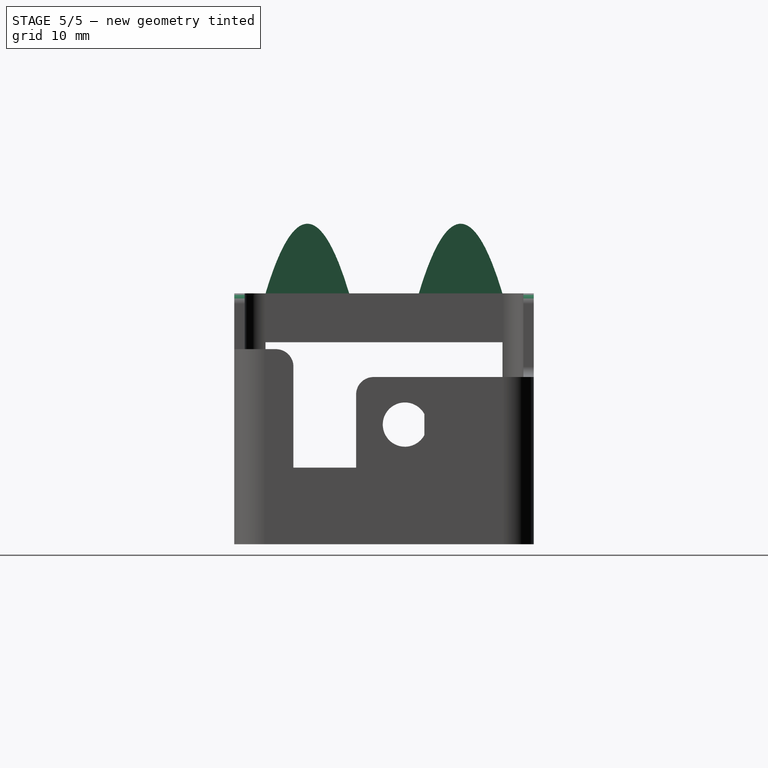
[diagram: stage 5 of 5 — right view after this stage's code; geometry added in this stage tinted green]
FEATURE [PartDesign::Fillet] Fillet
  Base = -> MultiTransform [Edge1076,Edge1082]
  BaseFeature = -> MultiTransform
  Radius = 1.5
  SupportTransform = false
  UseAllEdges = false
FEATURE [Sketcher::SketchObject] Sketch020
  ExternalGeometry = -> [Fillet]
  FullyConstrained = true
  MapMode = 5
  Placement = pos=(-44.5,0,0) rot=(0.57735,-0.57735,-0.57735;2.0944rad)
  Support = -> [Fillet]
  sketch-geometry (16):
    g0: Circle CenterX=-17 CenterY=36 CenterZ=0 NormalX=0 NormalY=0 NormalZ=1 AngleXU=0 Radius=1
    g1: Circle CenterX=-11 CenterY=56 CenterZ=0 NormalX=0 NormalY=0 NormalZ=1 AngleXU=0 Radius=1
    g2: Circle CenterX=-5 CenterY=36 CenterZ=0 NormalX=0 NormalY=0 NormalZ=1 AngleXU=0 Radius=1
    g3: BSplineCurve PolesCount=3 KnotsCount=2 Degree=2 IsPeriodic=0
    g4: GeomPoint X=-17 Y=36 Z=0
    g5: GeomPoint X=-5 Y=36 Z=0
    g6: Circle CenterX=5 CenterY=36 CenterZ=0 NormalX=0 NormalY=0 NormalZ=1 AngleXU=0 Radius=1
    g7: Circle CenterX=11 CenterY=56 CenterZ=0 NormalX=0 NormalY=0 NormalZ=1 AngleXU=0 Radius=1
    g8: Circle CenterX=17 CenterY=36 CenterZ=0 NormalX=0 NormalY=0 NormalZ=1 AngleXU=0 Radius=1
    g9: BSplineCurve PolesCount=3 KnotsCount=2 Degree=2 IsPeriodic=0
    g10: GeomPoint X=5 Y=36 Z=0
    g11: GeomPoint X=17 Y=36 Z=0
    g12: LineSegment StartX=-17 StartY=36 StartZ=0 EndX=-5 EndY=36 EndZ=0
    g13: LineSegment StartX=5 StartY=36 StartZ=0 EndX=17 EndY=36 EndZ=0
    g14: LineSegment StartX=-11 StartY=56 StartZ=0 EndX=-11 EndY=36 EndZ=0
    g15: LineSegment StartX=11 StartY=56 StartZ=0 EndX=11 EndY=36 EndZ=0
  constraints (34):
    c: Weight(g0) = 1
    c: Equal(g0,g1)
    c: Equal(g0,g2)
    c: InternalAlignment(g0,g3)
    c: InternalAlignment(g1,g3)
    c: InternalAlignment(g2,g3)
    c: InternalAlignment(g4,g3)
    c: InternalAlignment(g5,g3)
    c: Weight(g6) = 1
    c: Equal(g6,g7)
    c: Equal(g6,g8)
    c: InternalAlignment(g6,g9)
    c: InternalAlignment(g7,g9)
    c: InternalAlignment(g8,g9)
    c: InternalAlignment(g10,g9)
    c: InternalAlignment(g11,g9)
    c: Coincident(g12,g3)
    c: Coincident(g12,g3)
    c: Coincident(g13,g9)
    c: Coincident(g13,g9)
    c: Horizontal(g13)
    c: Horizontal(g12)
    c: Equal(g12,g13)
    c: Coincident(g14,g1)
    c: Symmetric(g3,g3,g14)
    c: Vertical(g14)
    c: Coincident(g15,g7)
    c: Symmetric(g9,g9,g15)
    c: Vertical(g15)
    c: Equal(g14,g15)
    c: Symmetric(g9,g3,g-2)
    c: Coincident(g3,g-3)
    c: DistanceX(g13,g13) = 12
    c: DistanceY(g14,g14) = 20
FEATURE [PartDesign::Pad] Pad003
  BaseFeature = -> Fillet
  Direction = (-1,0,0)
  Length = 1.5
  Length2 = 10
  Profile = -> Sketch020
  ReferenceAxis = -> Sketch020 [N_Axis]
  Reversed = true
  Type = 0
FEATURE [Sketcher::SketchObject] Sketch021
  ExternalGeometry = -> [Pocket009]
  FullyConstrained = true
  MapMode = 5
  Placement = pos=(0,0,0) rot=(1,0,0;3.14159rad)
  Support = -> [Pocket009]
  sketch-geometry (1):
    g0: Circle CenterX=29.5 CenterY=0 CenterZ=0 NormalX=0 NormalY=0 NormalZ=1 AngleXU=0 Radius=4.2
  constraints (2):
    c: Coincident(g0,g-3)
    c: Diameter(g0) = 8.4
FEATURE [PartDesign::Pocket] Pocket011
  BaseFeature = -> Pad003
  Direction = (0,0,1)
  Length = 4
  Length2 = 5
  Profile = -> Sketch021
  ReferenceAxis = -> Sketch021 [N_Axis]
  Type = 0
FEATURE [PartDesign::Body] Body
  Group = -> [Sketch,Pad,Sketch001,Sketch002,Sketch007,Sketch009,Pocket,Pad001,Sketch010,Sketch011,Sketch013,Sketch015,Pocket002,Pocket003,Pocket004,Pocket005,Sketch016,Pocket006,Sketch017,Pocket007,Sketch018,Pad002,Pocket008,Sketch019,Pocket009,Pocket010,MultiTransform,LinearPattern,LinearPattern001,Fillet,Sketch020,Pad003,Sketch021,Pocket011]
  Origin = -> Origin
  Tip = -> Pocket011
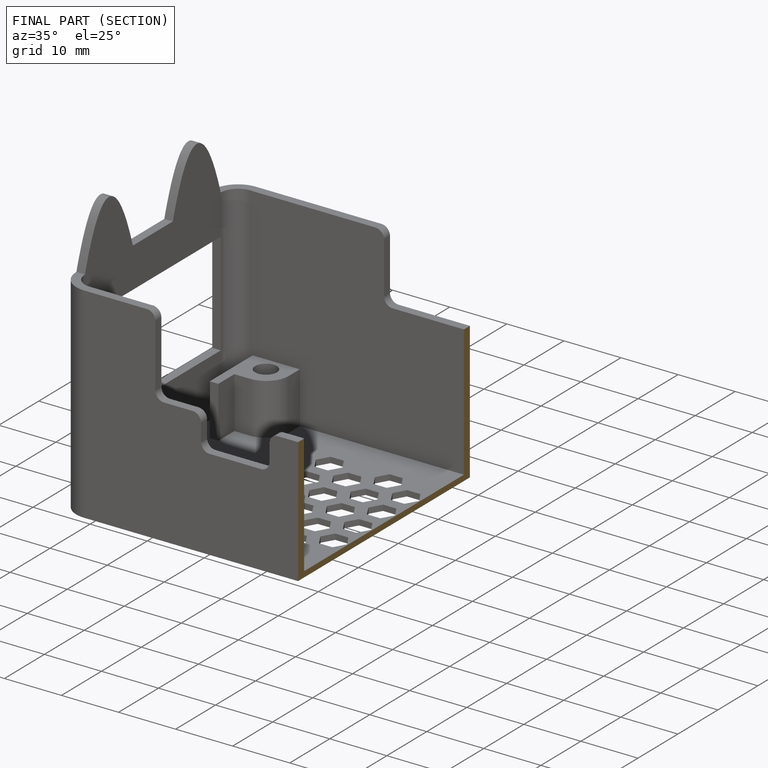
[diagram: finished part — half-section view (interior)]
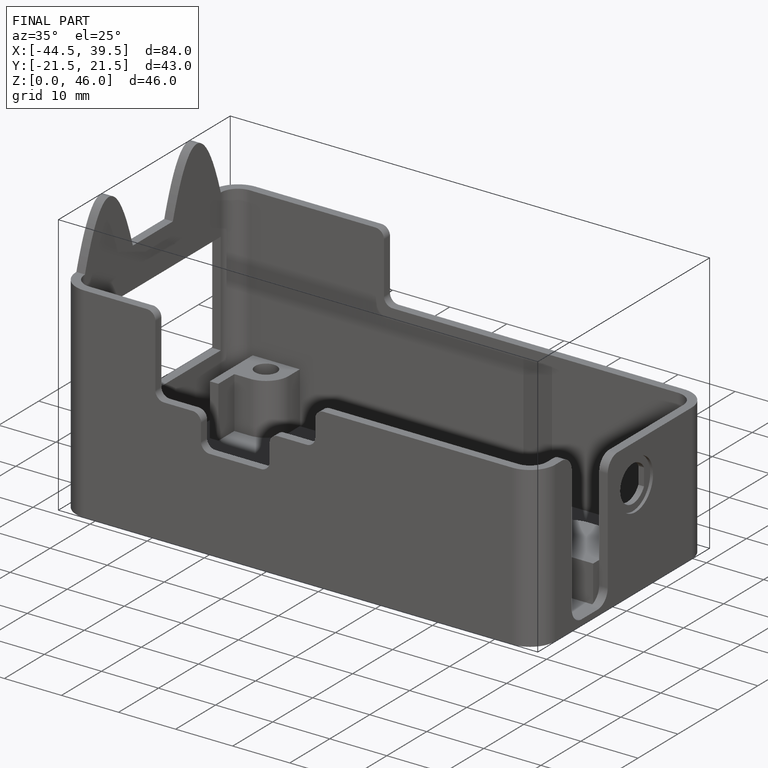
[diagram: finished part — iso view with bounding-box wireframe]
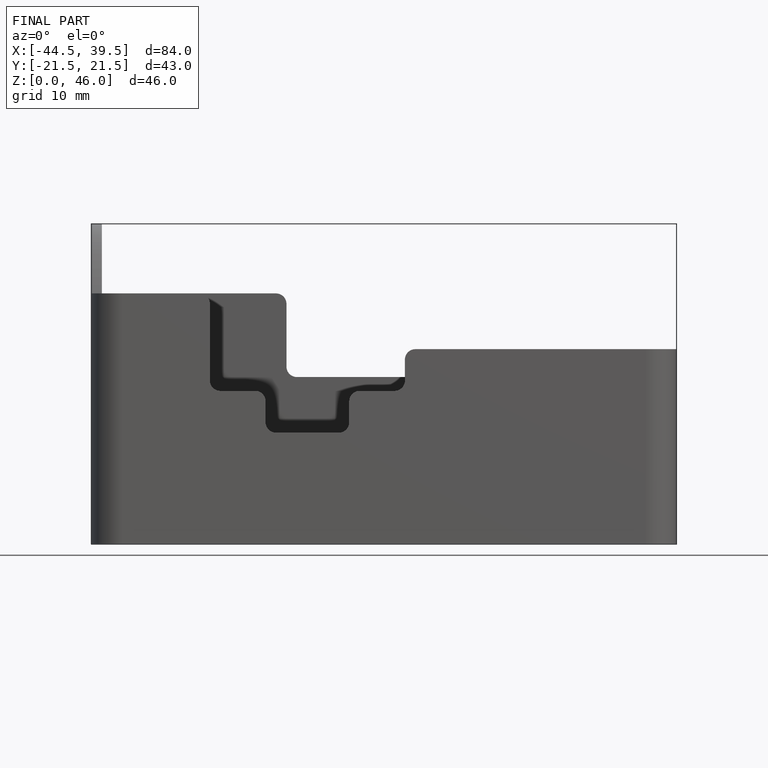
[diagram: finished part — front view with bounding-box wireframe]
